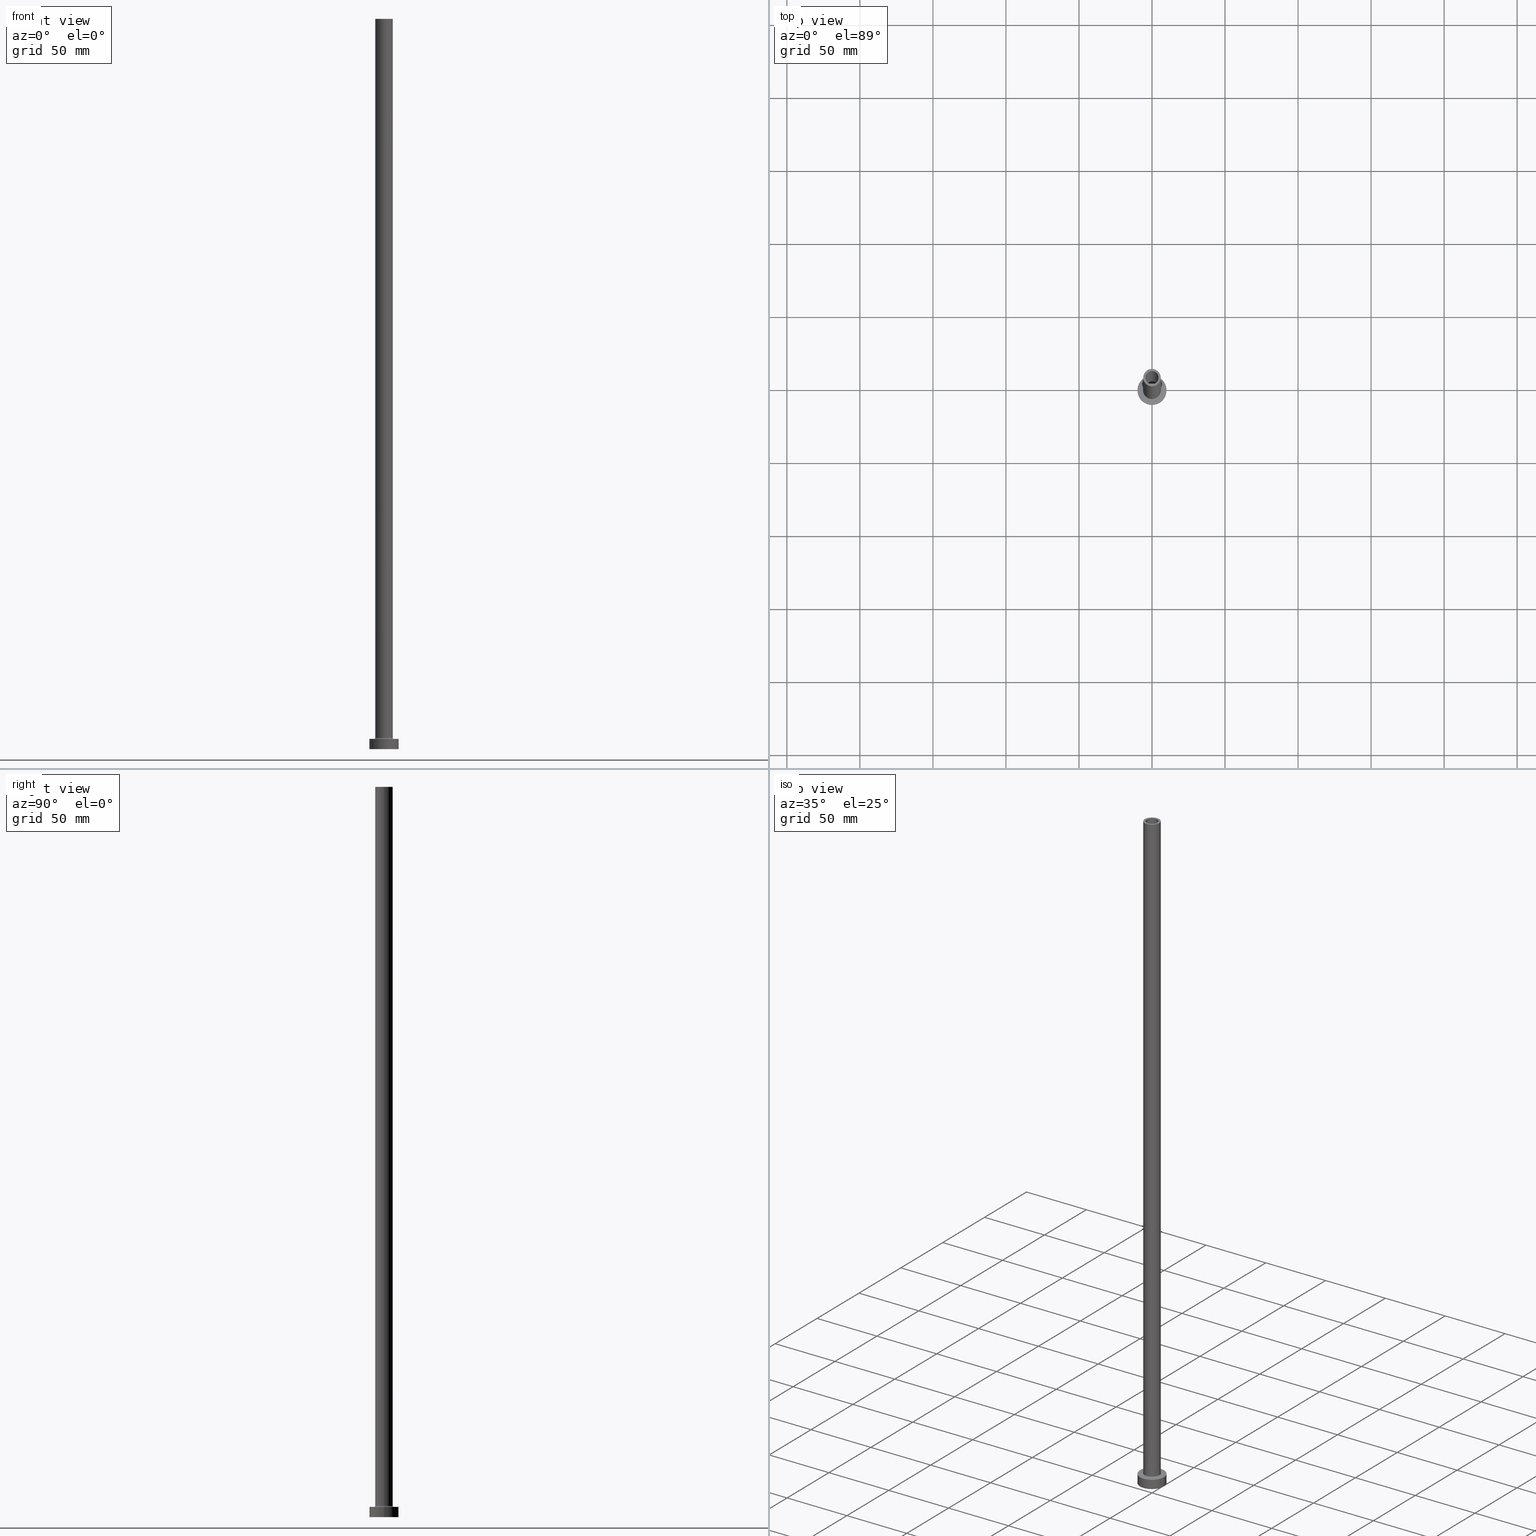
[diagram: canonical four-view strip — front | top / right | iso, engineering-drawing reading convention]
A machine part, canonical four-view strip (front | top / right | iso — engineering-drawing reading convention). The complete STEP part file that produces these views, byte-faithful:
ISO-10303-21;
HEADER;
FILE_DESCRIPTION (( 'STEP AP203' ),
    '1' );
FILE_NAME ('7a58.STEP',
    '2023-02-13T11:00:47',
    ( '' ),
    ( '' ),
    'SwSTEP 2.0',
    'SolidWorks 2019',
    '' );
FILE_SCHEMA (( 'CONFIG_CONTROL_DESIGN' ));
ENDSEC;

DATA;
#1 = VECTOR ( 'NONE', #321, 1000.000000000000000 ) ;
#2 = CARTESIAN_POINT ( 'NONE',  ( 4.500000000000000000, 5.510910596163087583E-16, 500.0000000000000000 ) ) ;
#3 = SECURITY_CLASSIFICATION ( '', '', #18 ) ;
#4 = ORIENTED_EDGE ( 'NONE', *, *, #101, .F. ) ;
#5 = CARTESIAN_POINT ( 'NONE',  ( 0.000000000000000000, 0.000000000000000000, 0.000000000000000000 ) ) ;
#6 = CARTESIAN_POINT ( 'NONE',  ( 0.000000000000000000, 0.000000000000000000, 500.0000000000000000 ) ) ;
#7 = LINE ( 'NONE', #81, #267 ) ;
#8 = COORDINATED_UNIVERSAL_TIME_OFFSET ( 1, 0, .AHEAD. ) ;
#9 = DIRECTION ( 'NONE',  ( 0.000000000000000000, 0.000000000000000000, 1.000000000000000000 ) ) ;
#10 = AXIS2_PLACEMENT_3D ( 'NONE', #300, #88, #442 ) ;
#11 = APPROVAL_PERSON_ORGANIZATION ( #343, #117, #448 ) ;
#12 = DIRECTION ( 'NONE',  ( 0.000000000000000000, 0.000000000000000000, 1.000000000000000000 ) ) ;
#13 = ORIENTED_EDGE ( 'NONE', *, *, #16, .T. ) ;
#14 = EDGE_CURVE ( 'NONE', #132, #203, #367, .T. ) ;
#15 = DIRECTION ( 'NONE',  ( -0.000000000000000000, -0.000000000000000000, -1.000000000000000000 ) ) ;
#16 = EDGE_CURVE ( 'NONE', #391, #280, #393, .T. ) ;
#17 = CYLINDRICAL_SURFACE ( 'NONE', #302, 4.500000000000000000 ) ;
#18 = SECURITY_CLASSIFICATION_LEVEL ( 'unclassified' ) ;
#19 = CIRCLE ( 'NONE', #179, 6.700000000000001066 ) ;
#20 = CC_DESIGN_APPROVAL ( #117, ( #439 ) ) ;
#21 = EDGE_CURVE ( 'NONE', #192, #247, #113, .T. ) ;
#22 = CARTESIAN_POINT ( 'NONE',  ( 6.000000000000000888, 7.347880794884120722E-16, 7.699999999999985079 ) ) ;
#23 = CARTESIAN_POINT ( 'NONE',  ( -4.500000000000000000, 0.000000000000000000, 455.0000000000000000 ) ) ;
#24 = ORIENTED_EDGE ( 'NONE', *, *, #350, .T. ) ;
#25 = CARTESIAN_POINT ( 'NONE',  ( -6.000000000000000888, 0.000000000000000000, 7.699999999999985079 ) ) ;
#26 = EDGE_LOOP ( 'NONE', ( #95, #139, #242, #229 ) ) ;
#27 = CIRCLE ( 'NONE', #342, 0.7000000000000000666 ) ;
#28 = CIRCLE ( 'NONE', #114, 6.700000000000001066 ) ;
#29 = DIRECTION ( 'NONE',  ( 0.000000000000000000, 0.000000000000000000, 1.000000000000000000 ) ) ;
#30 = DIRECTION ( 'NONE',  ( -0.000000000000000000, -0.000000000000000000, -1.000000000000000000 ) ) ;
#31 = DIRECTION ( 'NONE',  ( 0.000000000000000000, 0.000000000000000000, -1.000000000000000000 ) ) ;
#32 = AXIS2_PLACEMENT_3D ( 'NONE', #281, #31, #416 ) ;
#33 = EDGE_CURVE ( 'NONE', #356, #132, #7, .T. ) ;
#34 = CARTESIAN_POINT ( 'NONE',  ( -10.00000000000000000, 0.000000000000000000, 0.000000000000000000 ) ) ;
#35 = VERTEX_POINT ( 'NONE', #189 ) ;
#36 = DIRECTION ( 'NONE',  ( -1.000000000000000000, 0.000000000000000000, 0.000000000000000000 ) ) ;
#37 = ORIENTED_EDGE ( 'NONE', *, *, #377, .T. ) ;
#38 = CARTESIAN_POINT ( 'NONE',  ( 0.000000000000000000, 0.000000000000000000, 500.0000000000000000 ) ) ;
#39 = ORIENTED_EDGE ( 'NONE', *, *, #307, .F. ) ;
#40 =( LENGTH_UNIT ( ) NAMED_UNIT ( * ) SI_UNIT ( .MILLI., .METRE. ) );
#41 = PERSON_AND_ORGANIZATION ( #48, #318 ) ;
#42 = CARTESIAN_POINT ( 'NONE',  ( 0.000000000000000000, 0.000000000000000000, 500.0000000000000000 ) ) ;
#43 = ORIENTED_EDGE ( 'NONE', *, *, #233, .F. ) ;
#44 = FACE_OUTER_BOUND ( 'NONE', #434, .T. ) ;
#45 = AXIS2_PLACEMENT_3D ( 'NONE', #337, #407, #270 ) ;
#46 = ADVANCED_FACE ( 'NONE', ( #228 ), #17, .F. ) ;
#47 = AXIS2_PLACEMENT_3D ( 'NONE', #172, #452, #169 ) ;
#48 = PERSON ( 'NEUR�EN�', 'NEUR�EN�', 'NEUR�EN�', ('NEUR�EN�'), ('NEUR�EN�'), ('NEUR�EN�') ) ;
#49 = CC_DESIGN_PERSON_AND_ORGANIZATION_ASSIGNMENT ( #327, #294, ( #94 ) ) ;
#50 = CARTESIAN_POINT ( 'NONE',  ( -4.500000000000000000, 0.000000000000000000, 500.0000000000000000 ) ) ;
#51 = PERSON_AND_ORGANIZATION_ROLE ( 'classification_officer' ) ;
#52 = DIRECTION ( 'NONE',  ( -0.000000000000000000, -0.000000000000000000, -1.000000000000000000 ) ) ;
#53 = EDGE_CURVE ( 'NONE', #35, #371, #19, .T. ) ;
#54 = CALENDAR_DATE ( 2023, 13, 2 ) ;
#55 = DIRECTION ( 'NONE',  ( 1.000000000000000000, 0.000000000000000000, 0.000000000000000000 ) ) ;
#56 = AXIS2_PLACEMENT_3D ( 'NONE', #269, #29, #167 ) ;
#57 = LOCAL_TIME ( 12, 0, 47.00000000000000000, #59 ) ;
#58 = FACE_OUTER_BOUND ( 'NONE', #271, .T. ) ;
#59 = COORDINATED_UNIVERSAL_TIME_OFFSET ( 1, 0, .AHEAD. ) ;
#60 = DIRECTION ( 'NONE',  ( 0.000000000000000000, 0.000000000000000000, 1.000000000000000000 ) ) ;
#61 = EDGE_LOOP ( 'NONE', ( #174, #216, #409, #83 ) ) ;
#62 = CC_DESIGN_DATE_AND_TIME_ASSIGNMENT ( #121, #380, ( #3 ) ) ;
#63 = PERSON_AND_ORGANIZATION ( #48, #318 ) ;
#64 = DIRECTION ( 'NONE',  ( -0.000000000000000000, -0.000000000000000000, -1.000000000000000000 ) ) ;
#65 = CIRCLE ( 'NONE', #202, 10.00000000000000000 ) ;
#66 = DIRECTION ( 'NONE',  ( 0.000000000000000000, 0.000000000000000000, 1.000000000000000000 ) ) ;
#67 = CARTESIAN_POINT ( 'NONE',  ( 0.000000000000000000, 0.000000000000000000, 7.000000000000000000 ) ) ;
#68 = EDGE_CURVE ( 'NONE', #141, #227, #97, .T. ) ;
#69 = DIRECTION ( 'NONE',  ( 1.000000000000000000, 0.000000000000000000, 0.000000000000000000 ) ) ;
#70 = ORIENTED_EDGE ( 'NONE', *, *, #176, .F. ) ;
#71 = AXIS2_PLACEMENT_3D ( 'NONE', #375, #376, #55 ) ;
#72 = DIRECTION ( 'NONE',  ( -1.000000000000000000, 0.000000000000000000, 0.000000000000000000 ) ) ;
#73 = DIRECTION ( 'NONE',  ( 1.224646799147353207E-16, 1.000000000000000000, -0.000000000000000000 ) ) ;
#74 = ORIENTED_EDGE ( 'NONE', *, *, #16, .F. ) ;
#75 = DIRECTION ( 'NONE',  ( -1.000000000000000000, 0.000000000000000000, 0.000000000000000000 ) ) ;
#76 = MECHANICAL_CONTEXT ( 'NONE', #193, 'mechanical' ) ;
#77 = APPROVAL_STATUS ( 'not_yet_approved' ) ;
#78 = EDGE_CURVE ( 'NONE', #401, #173, #89, .T. ) ;
#79 = APPROVAL_ROLE ( '' ) ;
#80 = CARTESIAN_POINT ( 'NONE',  ( 0.000000000000000000, 0.000000000000000000, 7.000000000000000000 ) ) ;
#81 = CARTESIAN_POINT ( 'NONE',  ( -4.650000000000000355, 0.000000000000000000, 468.1521861300697651 ) ) ;
#82 = CIRCLE ( 'NONE', #143, 10.00000000000000000 ) ;
#83 = ORIENTED_EDGE ( 'NONE', *, *, #211, .F. ) ;
#84 = APPROVAL_ROLE ( '' ) ;
#85 = DIRECTION ( 'NONE',  ( 1.000000000000000000, 0.000000000000000000, 0.000000000000000000 ) ) ;
#86 = DATE_AND_TIME ( #299, #250 ) ;
#87 = FACE_OUTER_BOUND ( 'NONE', #273, .T. ) ;
#88 = DIRECTION ( 'NONE',  ( 0.000000000000000000, 0.000000000000000000, 1.000000000000000000 ) ) ;
#89 = CIRCLE ( 'NONE', #282, 6.000000000000000888 ) ;
#90 = EDGE_LOOP ( 'NONE', ( #100, #336 ) ) ;
#91 = AXIS2_PLACEMENT_3D ( 'NONE', #287, #182, #324 ) ;
#92 = EDGE_CURVE ( 'NONE', #192, #395, #453, .T. ) ;
#93 = DIRECTION ( 'NONE',  ( 0.000000000000000000, 0.000000000000000000, 1.000000000000000000 ) ) ;
#94 = PRODUCT ( '7a58', '7a58', '', ( #76 ) ) ;
#95 = ORIENTED_EDGE ( 'NONE', *, *, #115, .T. ) ;
#96 = CYLINDRICAL_SURFACE ( 'NONE', #223, 10.00000000000000000 ) ;
#97 = CIRCLE ( 'NONE', #446, 6.000000000000000888 ) ;
#98 = LOCAL_TIME ( 12, 0, 47.00000000000000000, #159 ) ;
#99 = DIRECTION ( 'NONE',  ( 0.000000000000000000, 0.000000000000000000, 1.000000000000000000 ) ) ;
#100 = ORIENTED_EDGE ( 'NONE', *, *, #14, .F. ) ;
#101 = EDGE_CURVE ( 'NONE', #395, #157, #118, .T. ) ;
#102 = ORIENTED_EDGE ( 'NONE', *, *, #14, .T. ) ;
#103 = FACE_OUTER_BOUND ( 'NONE', #244, .T. ) ;
#104 = ORIENTED_EDGE ( 'NONE', *, *, #53, .F. ) ;
#105 = ORIENTED_EDGE ( 'NONE', *, *, #53, .T. ) ;
#106 = FACE_BOUND ( 'NONE', #436, .T. ) ;
#107 = ORIENTED_EDGE ( 'NONE', *, *, #213, .T. ) ;
#108 = CIRCLE ( 'NONE', #289, 0.7000000000000000666 ) ;
#109 = DIRECTION ( 'NONE',  ( -0.000000000000000000, -0.000000000000000000, -1.000000000000000000 ) ) ;
#110 = ORIENTED_EDGE ( 'NONE', *, *, #92, .T. ) ;
#111 = CARTESIAN_POINT ( 'NONE',  ( 0.000000000000000000, 0.000000000000000000, 0.000000000000000000 ) ) ;
#112 = DIRECTION ( 'NONE',  ( 1.000000000000000000, 0.000000000000000000, 0.000000000000000000 ) ) ;
#113 = LINE ( 'NONE', #50, #1 ) ;
#114 = AXIS2_PLACEMENT_3D ( 'NONE', #80, #15, #357 ) ;
#115 = EDGE_CURVE ( 'NONE', #356, #199, #275, .T. ) ;
#116 = DATE_TIME_ROLE ( 'creation_date' ) ;
#117 = APPROVAL ( #303, 'NEUR�EN�' ) ;
#118 = LINE ( 'NONE', #258, #249 ) ;
#119 = ORIENTED_EDGE ( 'NONE', *, *, #443, .T. ) ;
#120 = DIRECTION ( 'NONE',  ( 0.000000000000000000, 0.000000000000000000, -1.000000000000000000 ) ) ;
#121 = DATE_AND_TIME ( #230, #57 ) ;
#122 = DIRECTION ( 'NONE',  ( 0.000000000000000000, 0.000000000000000000, -1.000000000000000000 ) ) ;
#123 = CC_DESIGN_APPROVAL ( #253, ( #3 ) ) ;
#124 = CARTESIAN_POINT ( 'NONE',  ( -4.500000000000000000, 0.000000000000000000, 500.0000000000000000 ) ) ;
#125 = CARTESIAN_POINT ( 'NONE',  ( 0.000000000000000000, 0.000000000000000000, 7.000000000000000000 ) ) ;
#126 = CARTESIAN_POINT ( 'NONE',  ( -4.650000000000000355, 0.000000000000000000, 0.000000000000000000 ) ) ;
#127 = CIRCLE ( 'NONE', #304, 6.000000000000000888 ) ;
#128 = EDGE_CURVE ( 'NONE', #203, #132, #411, .T. ) ;
#129 = DIRECTION ( 'NONE',  ( 1.000000000000000000, 0.000000000000000000, 0.000000000000000000 ) ) ;
#130 = ORIENTED_EDGE ( 'NONE', *, *, #430, .T. ) ;
#131 = CARTESIAN_POINT ( 'NONE',  ( 0.000000000000000000, 0.000000000000000000, 500.0000000000000000 ) ) ;
#132 = VERTEX_POINT ( 'NONE', #126 ) ;
#133 = FACE_OUTER_BOUND ( 'NONE', #26, .T. ) ;
#134 = ORIENTED_EDGE ( 'NONE', *, *, #430, .F. ) ;
#135 = TOROIDAL_SURFACE ( 'NONE', #268, 6.700000000000001066, 0.6999999999999999556 ) ;
#136 = AXIS2_PLACEMENT_3D ( 'NONE', #225, #12, #260 ) ;
#137 = LINE ( 'NONE', #415, #262 ) ;
#138 = DIRECTION ( 'NONE',  ( 0.000000000000000000, 0.000000000000000000, 1.000000000000000000 ) ) ;
#139 = ORIENTED_EDGE ( 'NONE', *, *, #310, .T. ) ;
#140 = DIRECTION ( 'NONE',  ( 0.000000000000000000, 0.000000000000000000, 1.000000000000000000 ) ) ;
#141 = VERTEX_POINT ( 'NONE', #22 ) ;
#142 = ADVANCED_FACE ( 'NONE', ( #378 ), #171, .F. ) ;
#143 = AXIS2_PLACEMENT_3D ( 'NONE', #284, #99, #243 ) ;
#144 = CYLINDRICAL_SURFACE ( 'NONE', #236, 6.000000000000000888 ) ;
#145 = DIRECTION ( 'NONE',  ( -0.000000000000000000, -0.000000000000000000, -1.000000000000000000 ) ) ;
#146 = APPLICATION_PROTOCOL_DEFINITION ( 'international standard', 'config_control_design', 1994, #426 ) ;
#147 = EDGE_CURVE ( 'NONE', #173, #141, #198, .T. ) ;
#148 = DIRECTION ( 'NONE',  ( -1.000000000000000000, 0.000000000000000000, 0.000000000000000000 ) ) ;
#149 = AXIS2_PLACEMENT_3D ( 'NONE', #180, #152, #291 ) ;
#150 = DATE_AND_TIME ( #221, #454 ) ;
#151 = AXIS2_PLACEMENT_3D ( 'NONE', #38, #175, #72 ) ;
#152 = DIRECTION ( 'NONE',  ( 0.000000000000000000, 0.000000000000000000, 1.000000000000000000 ) ) ;
#153 = CYLINDRICAL_SURFACE ( 'NONE', #394, 4.650000000000000355 ) ;
#154 = FACE_BOUND ( 'NONE', #90, .T. ) ;
#155 = DIRECTION ( 'NONE',  ( -0.000000000000000000, -0.000000000000000000, -1.000000000000000000 ) ) ;
#156 = CC_DESIGN_PERSON_AND_ORGANIZATION_ASSIGNMENT ( #441, #334, ( #439 ) ) ;
#157 = VERTEX_POINT ( 'NONE', #239 ) ;
#158 = CIRCLE ( 'NONE', #323, 4.500000000000000000 ) ;
#159 = COORDINATED_UNIVERSAL_TIME_OFFSET ( 1, 0, .AHEAD. ) ;
#160 = UNCERTAINTY_MEASURE_WITH_UNIT (LENGTH_MEASURE( 1.000000000000000082E-05 ), #40, 'distance_accuracy_value', 'NONE');
#161 = CYLINDRICAL_SURFACE ( 'NONE', #201, 10.00000000000000000 ) ;
#162 = ADVANCED_FACE ( 'NONE', ( #381 ), #96, .T. ) ;
#163 = DIRECTION ( 'NONE',  ( 0.000000000000000000, 0.000000000000000000, -1.000000000000000000 ) ) ;
#164 = AXIS2_PLACEMENT_3D ( 'NONE', #419, #145, #388 ) ;
#165 = AXIS2_PLACEMENT_3D ( 'NONE', #354, #66, #204 ) ;
#166 = EDGE_LOOP ( 'NONE', ( #105, #130 ) ) ;
#167 = DIRECTION ( 'NONE',  ( 1.000000000000000000, 0.000000000000000000, 0.000000000000000000 ) ) ;
#168 = CARTESIAN_POINT ( 'NONE',  ( 0.000000000000000000, 0.000000000000000000, 7.699999999999985079 ) ) ;
#169 = DIRECTION ( 'NONE',  ( 1.000000000000000000, 0.000000000000000000, -0.000000000000000000 ) ) ;
#170 = ORIENTED_EDGE ( 'NONE', *, *, #310, .F. ) ;
#171 = TOROIDAL_SURFACE ( 'NONE', #10, 6.700000000000001066, 0.6999999999999999556 ) ;
#172 = CARTESIAN_POINT ( 'NONE',  ( 0.000000000000000000, 0.000000000000000000, 455.0000000000000000 ) ) ;
#173 = VERTEX_POINT ( 'NONE', #200 ) ;
#174 = ORIENTED_EDGE ( 'NONE', *, *, #420, .F. ) ;
#175 = DIRECTION ( 'NONE',  ( -0.000000000000000000, -0.000000000000000000, -1.000000000000000000 ) ) ;
#176 = EDGE_CURVE ( 'NONE', #157, #247, #332, .T. ) ;
#177 = ORIENTED_EDGE ( 'NONE', *, *, #443, .F. ) ;
#178 = CARTESIAN_POINT ( 'NONE',  ( 0.000000000000000000, 0.000000000000000000, 455.0000000000000000 ) ) ;
#179 = AXIS2_PLACEMENT_3D ( 'NONE', #405, #155, #295 ) ;
#180 = CARTESIAN_POINT ( 'NONE',  ( 0.000000000000000000, 0.000000000000000000, 500.0000000000000000 ) ) ;
#181 = EDGE_CURVE ( 'NONE', #391, #220, #421, .T. ) ;
#182 = DIRECTION ( 'NONE',  ( 0.000000000000000000, 0.000000000000000000, 1.000000000000000000 ) ) ;
#183 = EDGE_LOOP ( 'NONE', ( #110, #460, #351, #328 ) ) ;
#184 = PERSON_AND_ORGANIZATION_ROLE ( 'creator' ) ;
#185 = ORIENTED_EDGE ( 'NONE', *, *, #176, .T. ) ;
#186 = AXIS2_PLACEMENT_3D ( 'NONE', #67, #277, #418 ) ;
#187 = CALENDAR_DATE ( 2023, 13, 2 ) ;
#188 = ORIENTED_EDGE ( 'NONE', *, *, #340, .T. ) ;
#189 = CARTESIAN_POINT ( 'NONE',  ( 6.700000000000001066, 0.000000000000000000, 6.999999999999992006 ) ) ;
#190 = EDGE_LOOP ( 'NONE', ( #438, #312, #347, #188 ) ) ;
#191 = DIRECTION ( 'NONE',  ( -1.000000000000000000, 0.000000000000000000, 0.000000000000000000 ) ) ;
#192 = VERTEX_POINT ( 'NONE', #124 ) ;
#193 = APPLICATION_CONTEXT ( 'configuration controlled 3d designs of mechanical parts and assemblies' ) ;
#194 = CARTESIAN_POINT ( 'NONE',  ( -10.00000000000000000, 0.000000000000000000, 7.000000000000000000 ) ) ;
#195 = ADVANCED_FACE ( 'NONE', ( #87 ), #135, .F. ) ;
#196 = CARTESIAN_POINT ( 'NONE',  ( 6.700000000000001066, 0.000000000000000000, 7.699999999999985079 ) ) ;
#197 = APPROVAL_DATE_TIME ( #444, #117 ) ;
#198 = LINE ( 'NONE', #298, #358 ) ;
#199 = VERTEX_POINT ( 'NONE', #339 ) ;
#200 = CARTESIAN_POINT ( 'NONE',  ( 6.000000000000000888, 7.347880794884120722E-16, 500.0000000000000000 ) ) ;
#201 = AXIS2_PLACEMENT_3D ( 'NONE', #330, #301, #36 ) ;
#202 = AXIS2_PLACEMENT_3D ( 'NONE', #111, #360, #319 ) ;
#203 = VERTEX_POINT ( 'NONE', #231 ) ;
#204 = DIRECTION ( 'NONE',  ( 1.000000000000000000, 0.000000000000000000, -0.000000000000000000 ) ) ;
#205 = FACE_OUTER_BOUND ( 'NONE', #190, .T. ) ;
#206 = CARTESIAN_POINT ( 'NONE',  ( 10.00000000000000000, 1.224646799147353256E-15, 7.000000000000000000 ) ) ;
#207 = ORIENTED_EDGE ( 'NONE', *, *, #320, .T. ) ;
#208 = AXIS2_PLACEMENT_3D ( 'NONE', #440, #93, #308 ) ;
#209 = ORIENTED_EDGE ( 'NONE', *, *, #307, .T. ) ;
#210 =( GEOMETRIC_REPRESENTATION_CONTEXT ( 3 ) GLOBAL_UNCERTAINTY_ASSIGNED_CONTEXT ( ( #160 ) ) GLOBAL_UNIT_ASSIGNED_CONTEXT ( ( #40, #369, #217 ) ) REPRESENTATION_CONTEXT ( 'NONE', 'WORKASPACE' ) );
#211 = EDGE_CURVE ( 'NONE', #401, #227, #235, .T. ) ;
#212 = CARTESIAN_POINT ( 'NONE',  ( -6.700000000000001066, 8.205133554287267548E-16, 6.999999999999992006 ) ) ;
#213 = EDGE_CURVE ( 'NONE', #220, #391, #288, .T. ) ;
#214 = DIRECTION ( 'NONE',  ( -1.000000000000000000, 1.224646799147353454E-16, 0.000000000000000000 ) ) ;
#215 = ORIENTED_EDGE ( 'NONE', *, *, #181, .F. ) ;
#216 = ORIENTED_EDGE ( 'NONE', *, *, #147, .T. ) ;
#217 =( NAMED_UNIT ( * ) SI_UNIT ( $, .STERADIAN. ) SOLID_ANGLE_UNIT ( ) );
#218 = ORIENTED_EDGE ( 'NONE', *, *, #78, .T. ) ;
#219 = COORDINATED_UNIVERSAL_TIME_OFFSET ( 1, 0, .AHEAD. ) ;
#220 = VERTEX_POINT ( 'NONE', #194 ) ;
#221 = CALENDAR_DATE ( 2023, 13, 2 ) ;
#222 = ORIENTED_EDGE ( 'NONE', *, *, #33, .T. ) ;
#223 = AXIS2_PLACEMENT_3D ( 'NONE', #125, #64, #412 ) ;
#224 = CIRCLE ( 'NONE', #368, 4.650000000000000355 ) ;
#225 = CARTESIAN_POINT ( 'NONE',  ( 0.000000000000000000, 0.000000000000000000, 455.0000000000000000 ) ) ;
#226 = ADVANCED_FACE ( 'NONE', ( #58 ), #451, .F. ) ;
#227 = VERTEX_POINT ( 'NONE', #25 ) ;
#228 = FACE_OUTER_BOUND ( 'NONE', #183, .T. ) ;
#229 = ORIENTED_EDGE ( 'NONE', *, *, #33, .F. ) ;
#230 = CALENDAR_DATE ( 2023, 13, 2 ) ;
#231 = CARTESIAN_POINT ( 'NONE',  ( 4.650000000000000355, 5.694607616035192869E-16, 0.000000000000000000 ) ) ;
#232 = ADVANCED_BREP_SHAPE_REPRESENTATION ( '7a58', ( #427, #447 ), #210 ) ;
#233 = EDGE_CURVE ( 'NONE', #141, #35, #27, .T. ) ;
#234 = PERSON_AND_ORGANIZATION_ROLE ( 'design_supplier' ) ;
#235 = LINE ( 'NONE', #373, #432 ) ;
#236 = AXIS2_PLACEMENT_3D ( 'NONE', #314, #109, #352 ) ;
#237 = DIRECTION ( 'NONE',  ( 0.000000000000000000, 0.000000000000000000, 1.000000000000000000 ) ) ;
#238 = COORDINATED_UNIVERSAL_TIME_OFFSET ( 1, 0, .AHEAD. ) ;
#239 = CARTESIAN_POINT ( 'NONE',  ( 4.500000000000000000, 5.510910596163087583E-16, 455.0000000000000000 ) ) ;
#240 = PRODUCT_DEFINITION ( 'NEZN�M�', '', #439, #404 ) ;
#241 = CARTESIAN_POINT ( 'NONE',  ( -10.00000000000000000, 0.000000000000000000, 7.000000000000000000 ) ) ;
#242 = ORIENTED_EDGE ( 'NONE', *, *, #128, .T. ) ;
#243 = DIRECTION ( 'NONE',  ( 1.000000000000000000, 0.000000000000000000, 0.000000000000000000 ) ) ;
#244 = EDGE_LOOP ( 'NONE', ( #218, #306 ) ) ;
#245 = ORIENTED_EDGE ( 'NONE', *, *, #410, .T. ) ;
#246 = PLANE ( 'NONE',  #47 ) ;
#247 = VERTEX_POINT ( 'NONE', #23 ) ;
#248 = ADVANCED_FACE ( 'NONE', ( #272 ), #161, .T. ) ;
#249 = VECTOR ( 'NONE', #325, 1000.000000000000000 ) ;
#250 = LOCAL_TIME ( 12, 0, 47.00000000000000000, #238 ) ;
#251 = CYLINDRICAL_SURFACE ( 'NONE', #32, 4.650000000000000355 ) ;
#252 = ORIENTED_EDGE ( 'NONE', *, *, #181, .T. ) ;
#253 = APPROVAL ( #264, 'NEUR�EN�' ) ;
#254 = FACE_OUTER_BOUND ( 'NONE', #424, .T. ) ;
#255 = DIRECTION ( 'NONE',  ( 0.000000000000000000, 0.000000000000000000, 1.000000000000000000 ) ) ;
#256 = VECTOR ( 'NONE', #366, 1000.000000000000000 ) ;
#257 = PERSON_AND_ORGANIZATION ( #48, #318 ) ;
#258 = CARTESIAN_POINT ( 'NONE',  ( 4.500000000000000000, 5.510910596163087583E-16, 500.0000000000000000 ) ) ;
#259 = ADVANCED_FACE ( 'NONE', ( #205 ), #458, .T. ) ;
#260 = DIRECTION ( 'NONE',  ( 1.000000000000000000, 0.000000000000000000, 0.000000000000000000 ) ) ;
#261 = ORIENTED_EDGE ( 'NONE', *, *, #377, .F. ) ;
#262 = VECTOR ( 'NONE', #456, 1000.000000000000000 ) ;
#263 = DIRECTION ( 'NONE',  ( 1.000000000000000000, 0.000000000000000000, 0.000000000000000000 ) ) ;
#264 = APPROVAL_STATUS ( 'not_yet_approved' ) ;
#265 = ADVANCED_FACE ( 'NONE', ( #348 ), #144, .T. ) ;
#266 = APPROVAL_DATE_TIME ( #86, #253 ) ;
#267 = VECTOR ( 'NONE', #435, 1000.000000000000000 ) ;
#268 = AXIS2_PLACEMENT_3D ( 'NONE', #408, #60, #129 ) ;
#269 = CARTESIAN_POINT ( 'NONE',  ( 0.000000000000000000, 0.000000000000000000, 455.0000000000000000 ) ) ;
#270 = DIRECTION ( 'NONE',  ( 1.000000000000000000, 0.000000000000000000, 0.000000000000000000 ) ) ;
#271 = EDGE_LOOP ( 'NONE', ( #4, #209, #341, #70 ) ) ;
#272 = FACE_OUTER_BOUND ( 'NONE', #296, .T. ) ;
#273 = EDGE_LOOP ( 'NONE', ( #331, #385, #361, #134 ) ) ;
#274 = FACE_OUTER_BOUND ( 'NONE', #313, .T. ) ;
#275 = CIRCLE ( 'NONE', #353, 4.650000000000000355 ) ;
#276 = VERTEX_POINT ( 'NONE', #34 ) ;
#277 = DIRECTION ( 'NONE',  ( 0.000000000000000000, 0.000000000000000000, 1.000000000000000000 ) ) ;
#278 = ADVANCED_FACE ( 'NONE', ( #106, #274 ), #246, .F. ) ;
#279 = CARTESIAN_POINT ( 'NONE',  ( 10.00000000000000000, 1.224646799147353256E-15, 0.000000000000000000 ) ) ;
#280 = VERTEX_POINT ( 'NONE', #279 ) ;
#281 = CARTESIAN_POINT ( 'NONE',  ( 0.000000000000000000, 0.000000000000000000, 468.1521861300697651 ) ) ;
#282 = AXIS2_PLACEMENT_3D ( 'NONE', #42, #9, #85 ) ;
#283 = ORIENTED_EDGE ( 'NONE', *, *, #92, .F. ) ;
#284 = CARTESIAN_POINT ( 'NONE',  ( 0.000000000000000000, 0.000000000000000000, 0.000000000000000000 ) ) ;
#285 = DIRECTION ( 'NONE',  ( 0.000000000000000000, 0.000000000000000000, 1.000000000000000000 ) ) ;
#286 = ORIENTED_EDGE ( 'NONE', *, *, #320, .F. ) ;
#287 = CARTESIAN_POINT ( 'NONE',  ( 0.000000000000000000, 0.000000000000000000, 0.000000000000000000 ) ) ;
#288 = CIRCLE ( 'NONE', #71, 10.00000000000000000 ) ;
#289 = AXIS2_PLACEMENT_3D ( 'NONE', #422, #73, #214 ) ;
#290 = DIRECTION ( 'NONE',  ( 0.000000000000000000, 0.000000000000000000, 1.000000000000000000 ) ) ;
#291 = DIRECTION ( 'NONE',  ( 1.000000000000000000, 0.000000000000000000, 0.000000000000000000 ) ) ;
#292 = ADVANCED_FACE ( 'NONE', ( #133 ), #251, .F. ) ;
#293 = CC_DESIGN_PERSON_AND_ORGANIZATION_ASSIGNMENT ( #63, #51, ( #3 ) ) ;
#294 = PERSON_AND_ORGANIZATION_ROLE ( 'design_owner' ) ;
#295 = DIRECTION ( 'NONE',  ( 1.000000000000000000, 0.000000000000000000, 0.000000000000000000 ) ) ;
#296 = EDGE_LOOP ( 'NONE', ( #74, #406, #37, #119 ) ) ;
#297 = CIRCLE ( 'NONE', #136, 4.500000000000000000 ) ;
#298 = CARTESIAN_POINT ( 'NONE',  ( 6.000000000000000888, 7.347880794884120722E-16, 500.0000000000000000 ) ) ;
#299 = CALENDAR_DATE ( 2023, 13, 2 ) ;
#300 = CARTESIAN_POINT ( 'NONE',  ( 0.000000000000000000, 0.000000000000000000, 7.699999999999985079 ) ) ;
#301 = DIRECTION ( 'NONE',  ( -0.000000000000000000, -0.000000000000000000, -1.000000000000000000 ) ) ;
#302 = AXIS2_PLACEMENT_3D ( 'NONE', #6, #122, #148 ) ;
#303 = APPROVAL_STATUS ( 'not_yet_approved' ) ;
#304 = AXIS2_PLACEMENT_3D ( 'NONE', #168, #355, #69 ) ;
#305 = DIRECTION ( 'NONE',  ( 0.000000000000000000, -1.000000000000000000, 0.000000000000000000 ) ) ;
#306 = ORIENTED_EDGE ( 'NONE', *, *, #420, .T. ) ;
#307 = EDGE_CURVE ( 'NONE', #395, #192, #158, .T. ) ;
#308 = DIRECTION ( 'NONE',  ( 1.000000000000000000, 0.000000000000000000, 0.000000000000000000 ) ) ;
#309 = FACE_BOUND ( 'NONE', #166, .T. ) ;
#310 = EDGE_CURVE ( 'NONE', #199, #203, #137, .T. ) ;
#311 = CARTESIAN_POINT ( 'NONE',  ( 0.000000000000000000, 0.000000000000000000, 500.0000000000000000 ) ) ;
#312 = ORIENTED_EDGE ( 'NONE', *, *, #78, .F. ) ;
#313 = EDGE_LOOP ( 'NONE', ( #450, #349 ) ) ;
#314 = CARTESIAN_POINT ( 'NONE',  ( 0.000000000000000000, 0.000000000000000000, 500.0000000000000000 ) ) ;
#315 = EDGE_LOOP ( 'NONE', ( #326, #24, #104, #43 ) ) ;
#316 = LINE ( 'NONE', #241, #359 ) ;
#317 = CLOSED_SHELL ( 'NONE', ( #46, #292, #142, #265, #162, #248, #389, #459, #259, #396, #195, #457, #278, #226 ) ) ;
#318 = ORGANIZATION ( 'NEUR�EN�', 'NEUR�EN�', '' ) ;
#319 = DIRECTION ( 'NONE',  ( 1.000000000000000000, 0.000000000000000000, 0.000000000000000000 ) ) ;
#320 = EDGE_CURVE ( 'NONE', #280, #276, #82, .T. ) ;
#321 = DIRECTION ( 'NONE',  ( 0.000000000000000000, 0.000000000000000000, -1.000000000000000000 ) ) ;
#322 = AXIS2_PLACEMENT_3D ( 'NONE', #131, #163, #191 ) ;
#323 = AXIS2_PLACEMENT_3D ( 'NONE', #311, #140, #390 ) ;
#324 = DIRECTION ( 'NONE',  ( 1.000000000000000000, 0.000000000000000000, -0.000000000000000000 ) ) ;
#325 = DIRECTION ( 'NONE',  ( 0.000000000000000000, 0.000000000000000000, -1.000000000000000000 ) ) ;
#326 = ORIENTED_EDGE ( 'NONE', *, *, #340, .F. ) ;
#327 = PERSON_AND_ORGANIZATION ( #48, #318 ) ;
#328 = ORIENTED_EDGE ( 'NONE', *, *, #21, .F. ) ;
#329 = SHAPE_DEFINITION_REPRESENTATION ( #346, #232 ) ;
#330 = CARTESIAN_POINT ( 'NONE',  ( 0.000000000000000000, 0.000000000000000000, 7.000000000000000000 ) ) ;
#331 = ORIENTED_EDGE ( 'NONE', *, *, #350, .F. ) ;
#332 = CIRCLE ( 'NONE', #56, 4.500000000000000000 ) ;
#333 = LOCAL_TIME ( 12, 0, 47.00000000000000000, #219 ) ;
#334 = PERSON_AND_ORGANIZATION_ROLE ( 'creator' ) ;
#335 = CARTESIAN_POINT ( 'NONE',  ( 0.000000000000000000, 0.000000000000000000, 455.0000000000000000 ) ) ;
#336 = ORIENTED_EDGE ( 'NONE', *, *, #128, .F. ) ;
#337 = CARTESIAN_POINT ( 'NONE',  ( 0.000000000000000000, 0.000000000000000000, 0.000000000000000000 ) ) ;
#338 = PERSON_AND_ORGANIZATION ( #48, #318 ) ;
#339 = CARTESIAN_POINT ( 'NONE',  ( 4.650000000000000355, 5.694607616035192869E-16, 455.0000000000000000 ) ) ;
#340 = EDGE_CURVE ( 'NONE', #227, #141, #127, .T. ) ;
#341 = ORIENTED_EDGE ( 'NONE', *, *, #21, .T. ) ;
#342 = AXIS2_PLACEMENT_3D ( 'NONE', #196, #305, #445 ) ;
#343 = PERSON_AND_ORGANIZATION ( #48, #318 ) ;
#344 = APPROVAL ( #77, 'NEUR�EN�' ) ;
#345 = CC_DESIGN_APPROVAL ( #344, ( #240 ) ) ;
#346 = PRODUCT_DEFINITION_SHAPE ( 'NONE', 'NONE',  #240 ) ;
#347 = ORIENTED_EDGE ( 'NONE', *, *, #211, .T. ) ;
#348 = FACE_OUTER_BOUND ( 'NONE', #61, .T. ) ;
#349 = ORIENTED_EDGE ( 'NONE', *, *, #362, .F. ) ;
#350 = EDGE_CURVE ( 'NONE', #227, #371, #108, .T. ) ;
#351 = ORIENTED_EDGE ( 'NONE', *, *, #410, .F. ) ;
#352 = DIRECTION ( 'NONE',  ( -1.000000000000000000, 0.000000000000000000, 0.000000000000000000 ) ) ;
#353 = AXIS2_PLACEMENT_3D ( 'NONE', #335, #237, #449 ) ;
#354 = CARTESIAN_POINT ( 'NONE',  ( 0.000000000000000000, 0.000000000000000000, 500.0000000000000000 ) ) ;
#355 = DIRECTION ( 'NONE',  ( 0.000000000000000000, 0.000000000000000000, 1.000000000000000000 ) ) ;
#356 = VERTEX_POINT ( 'NONE', #387 ) ;
#357 = DIRECTION ( 'NONE',  ( 1.000000000000000000, 0.000000000000000000, 0.000000000000000000 ) ) ;
#358 = VECTOR ( 'NONE', #413, 1000.000000000000000 ) ;
#359 = VECTOR ( 'NONE', #30, 1000.000000000000000 ) ;
#360 = DIRECTION ( 'NONE',  ( 0.000000000000000000, 0.000000000000000000, 1.000000000000000000 ) ) ;
#361 = ORIENTED_EDGE ( 'NONE', *, *, #233, .T. ) ;
#362 = EDGE_CURVE ( 'NONE', #199, #356, #224, .T. ) ;
#363 = APPROVAL_DATE_TIME ( #399, #344 ) ;
#364 = CARTESIAN_POINT ( 'NONE',  ( 0.000000000000000000, 0.000000000000000000, 7.699999999999985079 ) ) ;
#365 = DIRECTION ( 'NONE',  ( 1.000000000000000000, 0.000000000000000000, 0.000000000000000000 ) ) ;
#366 = DIRECTION ( 'NONE',  ( -0.000000000000000000, -0.000000000000000000, -1.000000000000000000 ) ) ;
#367 = CIRCLE ( 'NONE', #164, 4.650000000000000355 ) ;
#368 = AXIS2_PLACEMENT_3D ( 'NONE', #178, #138, #383 ) ;
#369 =( NAMED_UNIT ( * ) PLANE_ANGLE_UNIT ( ) SI_UNIT ( $, .RADIAN. ) );
#370 = CARTESIAN_POINT ( 'NONE',  ( 10.00000000000000000, 1.224646799147353256E-15, 7.000000000000000000 ) ) ;
#371 = VERTEX_POINT ( 'NONE', #212 ) ;
#372 = PERSON_AND_ORGANIZATION ( #48, #318 ) ;
#373 = CARTESIAN_POINT ( 'NONE',  ( -6.000000000000000888, 0.000000000000000000, 500.0000000000000000 ) ) ;
#374 = EDGE_LOOP ( 'NONE', ( #283, #39 ) ) ;
#375 = CARTESIAN_POINT ( 'NONE',  ( 0.000000000000000000, 0.000000000000000000, 7.000000000000000000 ) ) ;
#376 = DIRECTION ( 'NONE',  ( 0.000000000000000000, 0.000000000000000000, 1.000000000000000000 ) ) ;
#377 = EDGE_CURVE ( 'NONE', #220, #276, #316, .T. ) ;
#378 = FACE_OUTER_BOUND ( 'NONE', #315, .T. ) ;
#379 = CC_DESIGN_DATE_AND_TIME_ASSIGNMENT ( #150, #116, ( #240 ) ) ;
#380 = DATE_TIME_ROLE ( 'classification_date' ) ;
#381 = FACE_OUTER_BOUND ( 'NONE', #417, .T. ) ;
#382 = CC_DESIGN_SECURITY_CLASSIFICATION ( #3, ( #439 ) ) ;
#383 = DIRECTION ( 'NONE',  ( 1.000000000000000000, 0.000000000000000000, 0.000000000000000000 ) ) ;
#384 = FACE_OUTER_BOUND ( 'NONE', #461, .T. ) ;
#385 = ORIENTED_EDGE ( 'NONE', *, *, #68, .F. ) ;
#386 = PLANE ( 'NONE',  #165 ) ;
#387 = CARTESIAN_POINT ( 'NONE',  ( -4.650000000000000355, 0.000000000000000000, 455.0000000000000000 ) ) ;
#388 = DIRECTION ( 'NONE',  ( 1.000000000000000000, 0.000000000000000000, 0.000000000000000000 ) ) ;
#389 = ADVANCED_FACE ( 'NONE', ( #309, #384 ), #455, .T. ) ;
#390 = DIRECTION ( 'NONE',  ( 1.000000000000000000, 0.000000000000000000, 0.000000000000000000 ) ) ;
#391 = VERTEX_POINT ( 'NONE', #206 ) ;
#392 = CARTESIAN_POINT ( 'NONE',  ( 0.000000000000000000, 0.000000000000000000, 500.0000000000000000 ) ) ;
#393 = LINE ( 'NONE', #370, #256 ) ;
#394 = AXIS2_PLACEMENT_3D ( 'NONE', #429, #120, #75 ) ;
#395 = VERTEX_POINT ( 'NONE', #2 ) ;
#396 = ADVANCED_FACE ( 'NONE', ( #428, #103 ), #386, .T. ) ;
#397 = APPLICATION_PROTOCOL_DEFINITION ( 'international standard', 'config_control_design', 1994, #193 ) ;
#398 = CC_DESIGN_PERSON_AND_ORGANIZATION_ASSIGNMENT ( #41, #184, ( #240 ) ) ;
#399 = DATE_AND_TIME ( #187, #333 ) ;
#400 = PLANE ( 'NONE',  #91 ) ;
#401 = VERTEX_POINT ( 'NONE', #437 ) ;
#402 = APPROVAL_PERSON_ORGANIZATION ( #257, #344, #79 ) ;
#403 = CC_DESIGN_PERSON_AND_ORGANIZATION_ASSIGNMENT ( #338, #234, ( #439 ) ) ;
#404 = DESIGN_CONTEXT ( 'detailed design', #426, 'design' ) ;
#405 = CARTESIAN_POINT ( 'NONE',  ( 0.000000000000000000, 0.000000000000000000, 7.000000000000000000 ) ) ;
#406 = ORIENTED_EDGE ( 'NONE', *, *, #213, .F. ) ;
#407 = DIRECTION ( 'NONE',  ( -0.000000000000000000, -0.000000000000000000, -1.000000000000000000 ) ) ;
#408 = CARTESIAN_POINT ( 'NONE',  ( 0.000000000000000000, 0.000000000000000000, 7.699999999999985079 ) ) ;
#409 = ORIENTED_EDGE ( 'NONE', *, *, #68, .T. ) ;
#410 = EDGE_CURVE ( 'NONE', #247, #157, #297, .T. ) ;
#411 = CIRCLE ( 'NONE', #45, 4.650000000000000355 ) ;
#412 = DIRECTION ( 'NONE',  ( -1.000000000000000000, 0.000000000000000000, 0.000000000000000000 ) ) ;
#413 = DIRECTION ( 'NONE',  ( -0.000000000000000000, -0.000000000000000000, -1.000000000000000000 ) ) ;
#414 = APPROVAL_PERSON_ORGANIZATION ( #372, #253, #84 ) ;
#415 = CARTESIAN_POINT ( 'NONE',  ( 4.650000000000000355, 5.694607616035192869E-16, 468.1521861300697651 ) ) ;
#416 = DIRECTION ( 'NONE',  ( -1.000000000000000000, 0.000000000000000000, 0.000000000000000000 ) ) ;
#417 = EDGE_LOOP ( 'NONE', ( #215, #13, #207, #261 ) ) ;
#418 = DIRECTION ( 'NONE',  ( 1.000000000000000000, 0.000000000000000000, -0.000000000000000000 ) ) ;
#419 = CARTESIAN_POINT ( 'NONE',  ( 0.000000000000000000, 0.000000000000000000, 0.000000000000000000 ) ) ;
#420 = EDGE_CURVE ( 'NONE', #173, #401, #423, .T. ) ;
#421 = CIRCLE ( 'NONE', #208, 10.00000000000000000 ) ;
#422 = CARTESIAN_POINT ( 'NONE',  ( -6.700000000000001066, 8.205133554287267548E-16, 7.699999999999985079 ) ) ;
#423 = CIRCLE ( 'NONE', #433, 6.000000000000000888 ) ;
#424 = EDGE_LOOP ( 'NONE', ( #170, #431, #222, #102 ) ) ;
#425 = PRODUCT_RELATED_PRODUCT_CATEGORY ( 'detail', '', ( #94 ) ) ;
#426 = APPLICATION_CONTEXT ( 'configuration controlled 3d designs of mechanical parts and assemblies' ) ;
#427 = MANIFOLD_SOLID_BREP ( 'Odebrat vysunut�m4', #317 ) ;
#428 = FACE_BOUND ( 'NONE', #374, .T. ) ;
#429 = CARTESIAN_POINT ( 'NONE',  ( 0.000000000000000000, 0.000000000000000000, 468.1521861300697651 ) ) ;
#430 = EDGE_CURVE ( 'NONE', #371, #35, #28, .T. ) ;
#431 = ORIENTED_EDGE ( 'NONE', *, *, #362, .T. ) ;
#432 = VECTOR ( 'NONE', #52, 1000.000000000000000 ) ;
#433 = AXIS2_PLACEMENT_3D ( 'NONE', #392, #290, #365 ) ;
#434 = EDGE_LOOP ( 'NONE', ( #177, #286 ) ) ;
#435 = DIRECTION ( 'NONE',  ( 0.000000000000000000, 0.000000000000000000, -1.000000000000000000 ) ) ;
#436 = EDGE_LOOP ( 'NONE', ( #245, #185 ) ) ;
#437 = CARTESIAN_POINT ( 'NONE',  ( -6.000000000000000888, 0.000000000000000000, 500.0000000000000000 ) ) ;
#438 = ORIENTED_EDGE ( 'NONE', *, *, #147, .F. ) ;
#439 = PRODUCT_DEFINITION_FORMATION_WITH_SPECIFIED_SOURCE ( 'LIBOVOLN�', '', #94, .NOT_KNOWN. ) ;
#440 = CARTESIAN_POINT ( 'NONE',  ( 0.000000000000000000, 0.000000000000000000, 7.000000000000000000 ) ) ;
#441 = PERSON_AND_ORGANIZATION ( #48, #318 ) ;
#442 = DIRECTION ( 'NONE',  ( 1.000000000000000000, 0.000000000000000000, 0.000000000000000000 ) ) ;
#443 = EDGE_CURVE ( 'NONE', #276, #280, #65, .T. ) ;
#444 = DATE_AND_TIME ( #54, #98 ) ;
#445 = DIRECTION ( 'NONE',  ( 0.000000000000000000, 0.000000000000000000, -1.000000000000000000 ) ) ;
#446 = AXIS2_PLACEMENT_3D ( 'NONE', #364, #255, #263 ) ;
#447 = AXIS2_PLACEMENT_3D ( 'NONE', #5, #285, #112 ) ;
#448 = APPROVAL_ROLE ( '' ) ;
#449 = DIRECTION ( 'NONE',  ( 1.000000000000000000, 0.000000000000000000, 0.000000000000000000 ) ) ;
#450 = ORIENTED_EDGE ( 'NONE', *, *, #115, .F. ) ;
#451 = CYLINDRICAL_SURFACE ( 'NONE', #322, 4.500000000000000000 ) ;
#452 = DIRECTION ( 'NONE',  ( 0.000000000000000000, 0.000000000000000000, 1.000000000000000000 ) ) ;
#453 = CIRCLE ( 'NONE', #149, 4.500000000000000000 ) ;
#454 = LOCAL_TIME ( 12, 0, 47.00000000000000000, #8 ) ;
#455 = PLANE ( 'NONE',  #186 ) ;
#456 = DIRECTION ( 'NONE',  ( 0.000000000000000000, 0.000000000000000000, -1.000000000000000000 ) ) ;
#457 = ADVANCED_FACE ( 'NONE', ( #254 ), #153, .F. ) ;
#458 = CYLINDRICAL_SURFACE ( 'NONE', #151, 6.000000000000000888 ) ;
#459 = ADVANCED_FACE ( 'NONE', ( #154, #44 ), #400, .F. ) ;
#460 = ORIENTED_EDGE ( 'NONE', *, *, #101, .T. ) ;
#461 = EDGE_LOOP ( 'NONE', ( #107, #252 ) ) ;
ENDSEC;
END-ISO-10303-21;
